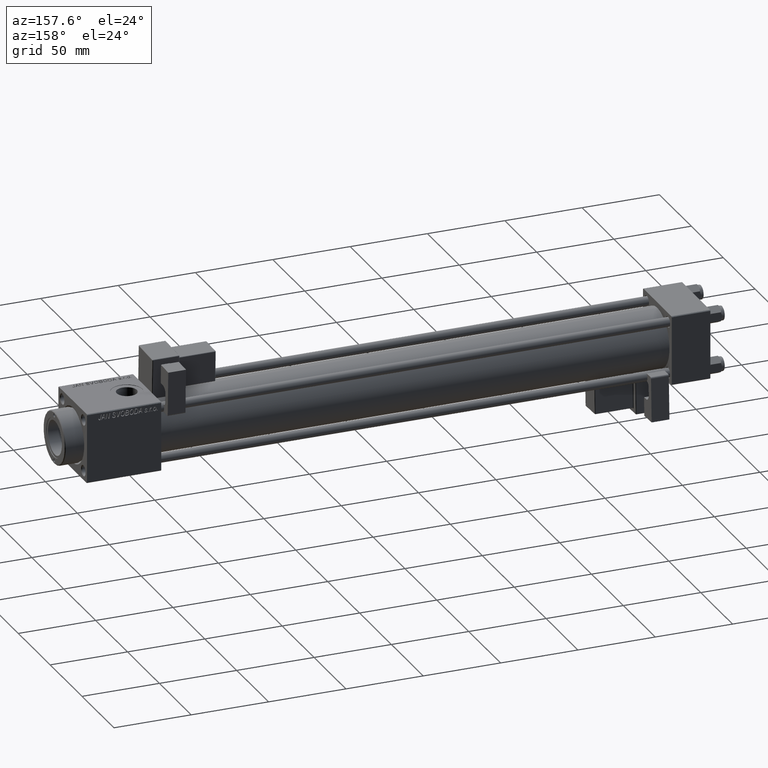
[diagram: clean part render]
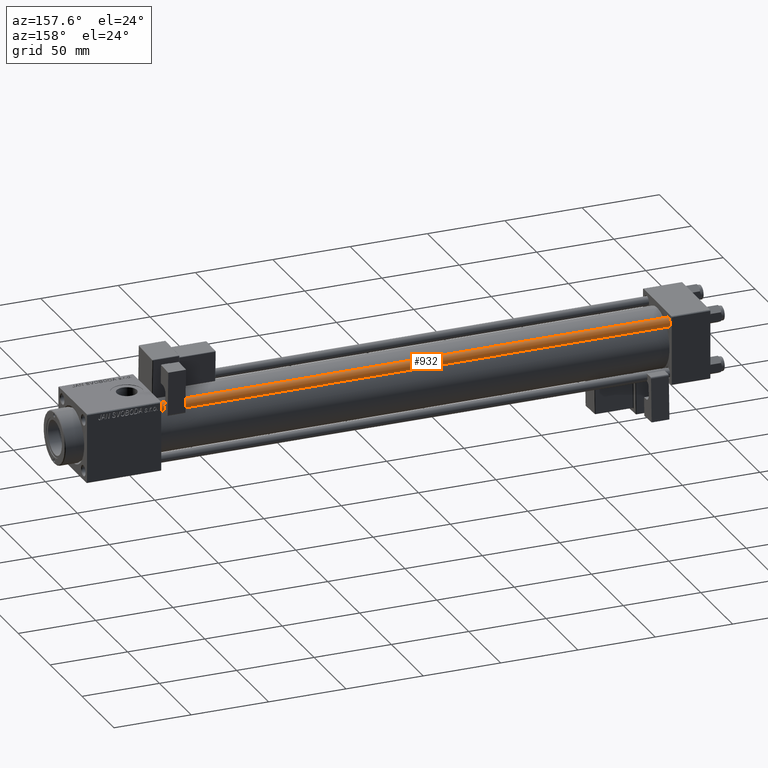
[diagram: same view with one face highlighted and labeled with its STEP entity id]
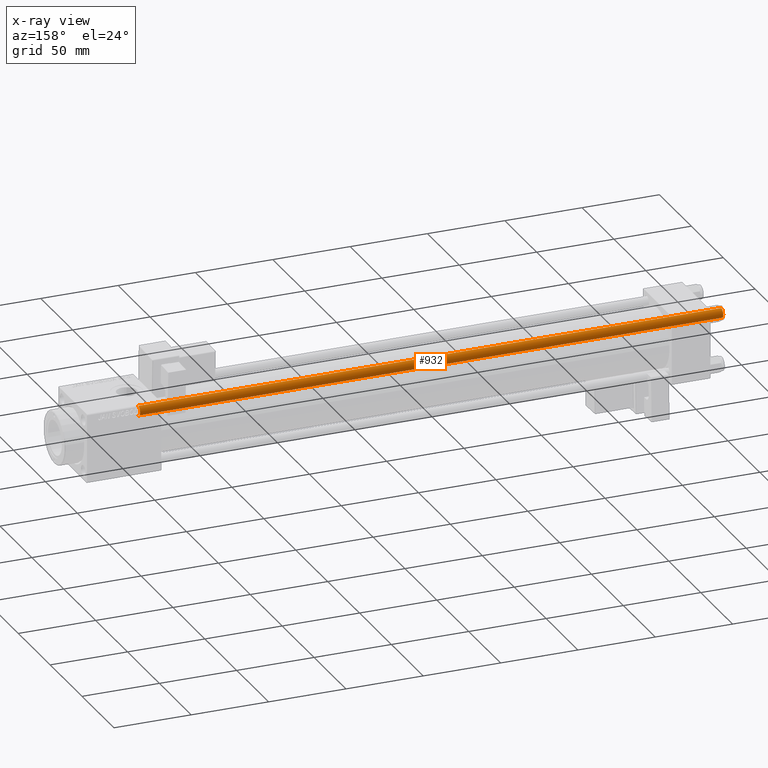
[diagram: x-ray of the same camera — body ghosted, the highlighted face saturated]
A machine part, auxiliary view. The second image highlights one B-rep face of the part: STEP entity #932.
The next image is the same camera in x-ray: the body ghosted, the highlighted face saturated — about 0% of this face is hidden behind the body in this view.
In plain terms, the highlighted cylindrical surface (edge-blend (fillet) strip) has radius 3 mm, axis along (-1, 0, 0).
Its self-contained STEP definition (entity closure, byte-faithful):
#932 = ADVANCED_FACE ( 'NONE', ( #4353 ), #16676, .T. ) ;
#1227 = ORIENTED_EDGE ( 'NONE', *, *, #21903, .T. ) ;
#1411 = DIRECTION ( 'NONE',  ( -0.000000000000000000, -0.000000000000000000, -1.000000000000000000 ) ) ;
#3683 = AXIS2_PLACEMENT_3D ( 'NONE', #24258, #40600, #16451 ) ;
#4353 = FACE_OUTER_BOUND ( 'NONE', #22732, .T. ) ;
#4618 = DIRECTION ( 'NONE',  ( -1.000000000000000000, 0.000000000000000000, 0.000000000000000000 ) ) ;
#5557 = EDGE_CURVE ( 'NONE', #46583, #8105, #18524, .T. ) ;
#6740 = CIRCLE ( 'NONE', #20553, 3.000000000000000444 ) ;
#8105 = VERTEX_POINT ( 'NONE', #40519 ) ;
#9173 = DIRECTION ( 'NONE',  ( 1.000000000000000000, 0.000000000000000000, 0.000000000000000000 ) ) ;
#9626 = EDGE_CURVE ( 'NONE', #10278, #8105, #6740, .T. ) ;
#10278 = VERTEX_POINT ( 'NONE', #47839 ) ;
#11012 = DIRECTION ( 'NONE',  ( -0.000000000000000000, -0.000000000000000000, -1.000000000000000000 ) ) ;
#12926 = DIRECTION ( 'NONE',  ( -0.000000000000000000, -0.000000000000000000, -1.000000000000000000 ) ) ;
#14762 = CARTESIAN_POINT ( 'NONE',  ( -3.000000000000000444, 0.000000000000000000, 378.0000000000000000 ) ) ;
#16451 = DIRECTION ( 'NONE',  ( 1.000000000000000000, 0.000000000000000000, 0.000000000000000000 ) ) ;
#16481 = CARTESIAN_POINT ( 'NONE',  ( 3.000000000000000444, 3.673940397442060361E-16, 377.5000000000000000 ) ) ;
#16676 = CYLINDRICAL_SURFACE ( 'NONE', #28838, 3.000000000000000444 ) ;
#18524 = LINE ( 'NONE', #14762, #30705 ) ;
#20553 = AXIS2_PLACEMENT_3D ( 'NONE', #34132, #41622, #9173 ) ;
#21542 = LINE ( 'NONE', #50504, #43143 ) ;
#21903 = EDGE_CURVE ( 'NONE', #50226, #10278, #21542, .T. ) ;
#22732 = EDGE_LOOP ( 'NONE', ( #24966, #1227, #28643, #29201 ) ) ;
#24258 = CARTESIAN_POINT ( 'NONE',  ( 0.000000000000000000, 0.000000000000000000, 377.5000000000000000 ) ) ;
#24966 = ORIENTED_EDGE ( 'NONE', *, *, #39568, .T. ) ;
#28643 = ORIENTED_EDGE ( 'NONE', *, *, #9626, .T. ) ;
#28838 = AXIS2_PLACEMENT_3D ( 'NONE', #45397, #12926, #4618 ) ;
#29201 = ORIENTED_EDGE ( 'NONE', *, *, #5557, .F. ) ;
#30705 = VECTOR ( 'NONE', #11012, 1000.000000000000000 ) ;
#34132 = CARTESIAN_POINT ( 'NONE',  ( 0.000000000000000000, 0.000000000000000000, 0.5000000000000004441 ) ) ;
#35378 = CIRCLE ( 'NONE', #3683, 3.000000000000000444 ) ;
#39568 = EDGE_CURVE ( 'NONE', #46583, #50226, #35378, .T. ) ;
#40519 = CARTESIAN_POINT ( 'NONE',  ( -3.000000000000000444, 0.000000000000000000, 0.5000000000000004441 ) ) ;
#40600 = DIRECTION ( 'NONE',  ( 0.000000000000000000, 0.000000000000000000, -1.000000000000000000 ) ) ;
#41622 = DIRECTION ( 'NONE',  ( -0.000000000000000000, -0.000000000000000000, 1.000000000000000000 ) ) ;
#43143 = VECTOR ( 'NONE', #1411, 1000.000000000000000 ) ;
#45397 = CARTESIAN_POINT ( 'NONE',  ( 0.000000000000000000, 0.000000000000000000, 378.0000000000000000 ) ) ;
#46583 = VERTEX_POINT ( 'NONE', #50973 ) ;
#47839 = CARTESIAN_POINT ( 'NONE',  ( 3.000000000000000444, 3.673940397442060361E-16, 0.5000000000000004441 ) ) ;
#50226 = VERTEX_POINT ( 'NONE', #16481 ) ;
#50504 = CARTESIAN_POINT ( 'NONE',  ( 3.000000000000000444, 3.673940397442060361E-16, 378.0000000000000000 ) ) ;
#50973 = CARTESIAN_POINT ( 'NONE',  ( -3.000000000000000444, 0.000000000000000000, 377.5000000000000000 ) ) ;